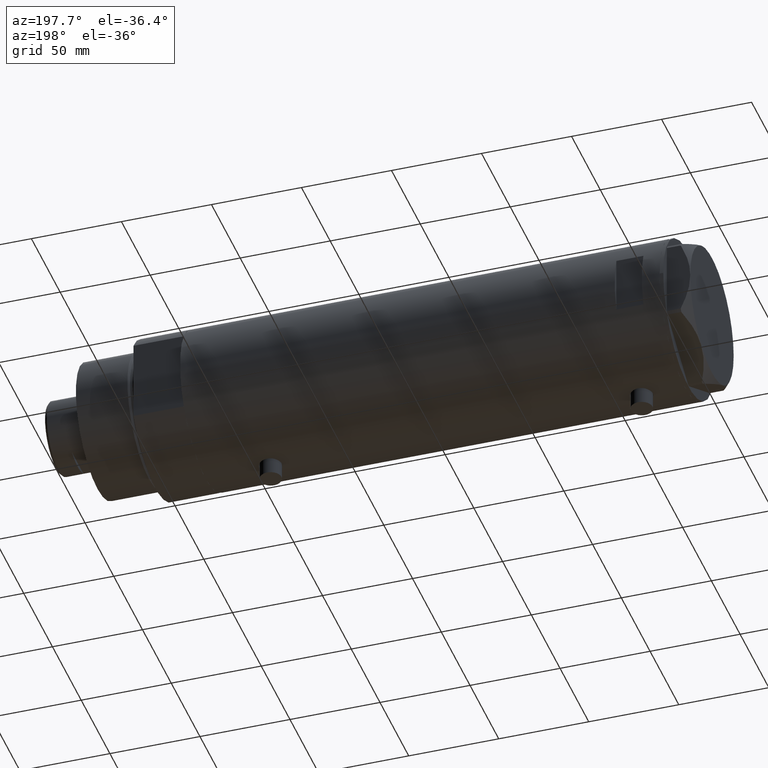
[diagram: clean part render]
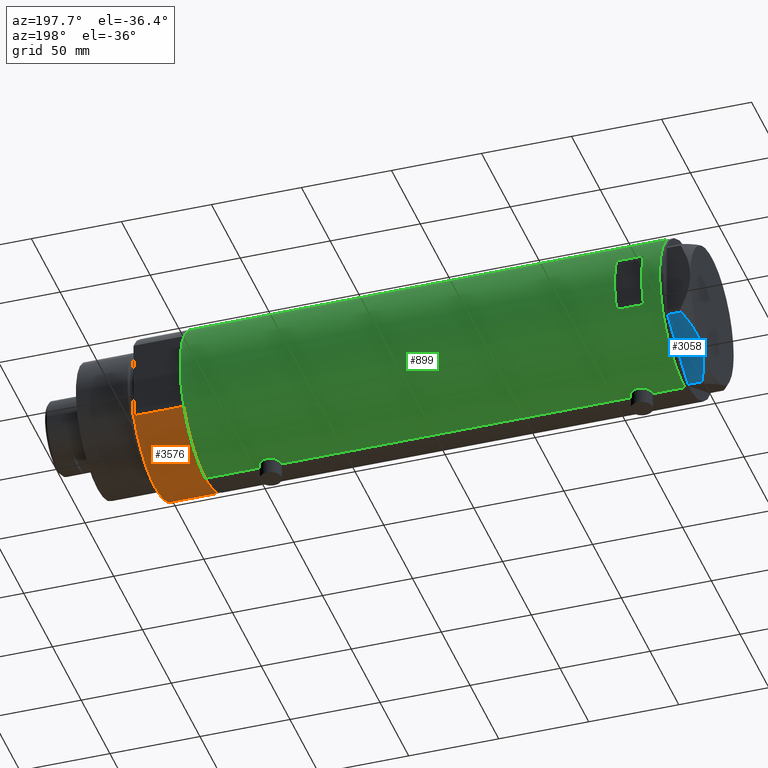
[diagram: same view with three faces highlighted in distinct colors, each labeled with its STEP entity id]
A machine part, auxiliary view with three faces highlighted in distinct colors.
Their STEP definitions:

[orange] entity #3576 — the highlighted cylindrical surface (partial cylindrical patch) has radius 44 mm, axis along (-1, -0, 0).
#256 = EDGE_CURVE ( 'NONE', #3690, #3277, #1221, .T. ) ;
#352 = LINE ( 'NONE', #435, #1498 ) ;
#435 = CARTESIAN_POINT ( 'NONE',  ( 23.01629857296780557, -37.50000000000000000, 0.000000000000000000 ) ) ;
#503 = AXIS2_PLACEMENT_3D ( 'NONE', #1279, #3387, #2715 ) ;
#665 = ORIENTED_EDGE ( 'NONE', *, *, #1046, .F. ) ;
#836 = ORIENTED_EDGE ( 'NONE', *, *, #1237, .F. ) ;
#1046 = EDGE_CURVE ( 'NONE', #1238, #2832, #1951, .T. ) ;
#1083 = CARTESIAN_POINT ( 'NONE',  ( 23.01629857296780557, -37.50000000000000000, 27.89999999999999858 ) ) ;
#1085 = ORIENTED_EDGE ( 'NONE', *, *, #1405, .T. ) ;
#1138 = CARTESIAN_POINT ( 'NONE',  ( 23.01629857296780557, 37.50000000000000000, 0.000000000000000000 ) ) ;
#1221 = CIRCLE ( 'NONE', #4551, 44.00000000000000000 ) ;
#1237 = EDGE_CURVE ( 'NONE', #3690, #1238, #352, .T. ) ;
#1238 = VERTEX_POINT ( 'NONE', #1083 ) ;
#1278 = DIRECTION ( 'NONE',  ( 1.000000000000000000, 0.000000000000000000, 0.000000000000000000 ) ) ;
#1279 = CARTESIAN_POINT ( 'NONE',  ( 0.000000000000000000, 0.000000000000000000, 27.89999999999999858 ) ) ;
#1301 = DIRECTION ( 'NONE',  ( 0.000000000000000000, 0.000000000000000000, 1.000000000000000000 ) ) ;
#1405 = EDGE_CURVE ( 'NONE', #3277, #2832, #4302, .T. ) ;
#1425 = DIRECTION ( 'NONE',  ( -0.000000000000000000, -0.000000000000000000, 1.000000000000000000 ) ) ;
#1498 = VECTOR ( 'NONE', #1425, 1000.000000000000000 ) ;
#1951 = CIRCLE ( 'NONE', #3224, 44.00000000000000000 ) ;
#2207 = DIRECTION ( 'NONE',  ( -0.000000000000000000, -0.000000000000000000, 1.000000000000000000 ) ) ;
#2217 = CARTESIAN_POINT ( 'NONE',  ( 0.000000000000000000, 0.000000000000000000, 27.89999999999999858 ) ) ;
#2304 = FACE_OUTER_BOUND ( 'NONE', #2309, .T. ) ;
#2309 = EDGE_LOOP ( 'NONE', ( #665, #836, #2467, #1085 ) ) ;
#2433 = CARTESIAN_POINT ( 'NONE',  ( 23.01629857296780557, 37.50000000000000000, 27.89999999999999858 ) ) ;
#2467 = ORIENTED_EDGE ( 'NONE', *, *, #256, .T. ) ;
#2715 = DIRECTION ( 'NONE',  ( -1.000000000000000000, 0.000000000000000000, 0.000000000000000000 ) ) ;
#2832 = VERTEX_POINT ( 'NONE', #2433 ) ;
#3224 = AXIS2_PLACEMENT_3D ( 'NONE', #2217, #4340, #3625 ) ;
#3277 = VERTEX_POINT ( 'NONE', #3287 ) ;
#3287 = CARTESIAN_POINT ( 'NONE',  ( 23.01629857296780557, 37.50000000000000000, 0.000000000000000000 ) ) ;
#3387 = DIRECTION ( 'NONE',  ( -0.000000000000000000, -0.000000000000000000, -1.000000000000000000 ) ) ;
#3513 = VECTOR ( 'NONE', #2207, 1000.000000000000000 ) ;
#3576 = ADVANCED_FACE ( 'NONE', ( #2304 ), #4445, .T. ) ;
#3625 = DIRECTION ( 'NONE',  ( 1.000000000000000000, 0.000000000000000000, 0.000000000000000000 ) ) ;
#3690 = VERTEX_POINT ( 'NONE', #4081 ) ;
#4081 = CARTESIAN_POINT ( 'NONE',  ( 23.01629857296780557, -37.50000000000000000, 0.000000000000000000 ) ) ;
#4302 = LINE ( 'NONE', #1138, #3513 ) ;
#4340 = DIRECTION ( 'NONE',  ( 0.000000000000000000, 0.000000000000000000, 1.000000000000000000 ) ) ;
#4444 = CARTESIAN_POINT ( 'NONE',  ( 0.000000000000000000, 0.000000000000000000, 0.000000000000000000 ) ) ;
#4445 = CYLINDRICAL_SURFACE ( 'NONE', #503, 44.00000000000000000 ) ;
#4551 = AXIS2_PLACEMENT_3D ( 'NONE', #4444, #1301, #1278 ) ;

[blue] entity #3058 — the highlighted planar face has unit normal (0, -0.5, 0.866).
#163 = CARTESIAN_POINT ( 'NONE',  ( 18.87500000000000000, 32.69245899286255508, 13.00000000000000000 ) ) ;
#266 = CARTESIAN_POINT ( 'NONE',  ( 17.32290914057161046, 33.58855906836029703, 12.99999999999999822 ) ) ;
#327 = VERTEX_POINT ( 'NONE', #4278 ) ;
#464 = LINE ( 'NONE', #513, #4334 ) ;
#513 = CARTESIAN_POINT ( 'NONE',  ( 37.75000000000000000, 21.79497266190837124, 0.000000000000000000 ) ) ;
#582 = VERTEX_POINT ( 'NONE', #3721 ) ;
#614 = CARTESIAN_POINT ( 'NONE',  ( 15.78316139395979611, 34.47753284435075471, 12.87183830165163556 ) ) ;
#625 = CARTESIAN_POINT ( 'NONE',  ( 19.65653997226999294, 32.24123667949002936, 13.00000000000000355 ) ) ;
#667 = CARTESIAN_POINT ( 'NONE',  ( 36.78005154776156616, 22.35497266190829180, 7.709124142616896158 ) ) ;
#685 = VERTEX_POINT ( 'NONE', #667 ) ;
#929 = DIRECTION ( 'NONE',  ( 0.8660254037844385966, -0.4999999999999999445, 0.000000000000000000 ) ) ;
#969 = CARTESIAN_POINT ( 'NONE',  ( 25.11263918036255305, 29.09115633297248849, 12.35956205105863859 ) ) ;
#996 = CARTESIAN_POINT ( 'NONE',  ( 20.44120046918717293, 31.78821273037242534, 12.96759879420492290 ) ) ;
#1032 = CARTESIAN_POINT ( 'NONE',  ( 36.78005154776142405, 22.35497266190837706, 0.000000000000000000 ) ) ;
#1300 = CARTESIAN_POINT ( 'NONE',  ( 18.87500000000000000, 32.69245899286255508, 13.00000000000000000 ) ) ;
#1329 = CARTESIAN_POINT ( 'NONE',  ( 8.199247025945881617, 38.85610784623463587, 11.04644118613097170 ) ) ;
#1336 = EDGE_LOOP ( 'NONE', ( #1674, #2821, #2046, #2373, #1871 ) ) ;
#1386 = CARTESIAN_POINT ( 'NONE',  ( 22.01686507582220642, 30.87850234557911833, 12.83692902789790224 ) ) ;
#1663 = CARTESIAN_POINT ( 'NONE',  ( 0.9699484522410141141, 43.02994532381532622, 7.709124142618329678 ) ) ;
#1674 = ORIENTED_EDGE ( 'NONE', *, *, #2766, .F. ) ;
#1676 = AXIS2_PLACEMENT_3D ( 'NONE', #4078, #2388, #929 ) ;
#1707 = CARTESIAN_POINT ( 'NONE',  ( 36.78005154776156616, 22.35497266190829180, 7.709124142616896158 ) ) ;
#1756 = DIRECTION ( 'NONE',  ( 0.000000000000000000, 0.000000000000000000, -1.000000000000000000 ) ) ;
#1766 = EDGE_CURVE ( 'NONE', #4064, #327, #2725, .T. ) ;
#1871 = ORIENTED_EDGE ( 'NONE', *, *, #1766, .F. ) ;
#2046 = ORIENTED_EDGE ( 'NONE', *, *, #3965, .T. ) ;
#2067 = CARTESIAN_POINT ( 'NONE',  ( 0.9699484522385712904, 43.02994532381674020, 13.00000000000000000 ) ) ;
#2198 = LINE ( 'NONE', #3612, #3887 ) ;
#2373 = ORIENTED_EDGE ( 'NONE', *, *, #3844, .T. ) ;
#2388 = DIRECTION ( 'NONE',  ( -0.5000000000000000000, -0.8660254037844387076, 0.000000000000000000 ) ) ;
#2583 = EDGE_CURVE ( 'NONE', #685, #3831, #2198, .T. ) ;
#2634 = CARTESIAN_POINT ( 'NONE',  ( 6.717640657182761821, 39.71151368207312515, 10.48240969891332064 ) ) ;
#2725 = B_SPLINE_CURVE_WITH_KNOTS ( 'NONE', 3,
 ( #1300, #266, #614, #3731, #3384, #4443, #1329, #2634, #4102, #3358, #3046, #1663 ),
 .UNSPECIFIED., .F., .F.,
 ( 4, 2, 2, 2, 2, 4 ),
 ( 0.02259271946349905927, 0.02789559809390696268, 0.03319847672431486263, 0.03584991603951881434, 0.03850135535472275911, 0.04380423398513066252 ),
 .UNSPECIFIED. ) ;
#2766 = EDGE_CURVE ( 'NONE', #685, #4064, #3917, .T. ) ;
#2821 = ORIENTED_EDGE ( 'NONE', *, *, #2583, .T. ) ;
#3046 = CARTESIAN_POINT ( 'NONE',  ( 2.376799045725944914, 42.21769975495722349, 8.489459328479338041 ) ) ;
#3058 = ADVANCED_FACE ( 'NONE', ( #4516 ), #4152, .F. ) ;
#3157 = CARTESIAN_POINT ( 'NONE',  ( 22.79667224021352112, 30.42828046930179298, 12.73960743196720458 ) ) ;
#3358 = CARTESIAN_POINT ( 'NONE',  ( 3.804046002726260589, 41.39367834013302883, 9.210778219601426287 ) ) ;
#3384 = CARTESIAN_POINT ( 'NONE',  ( 11.20965750620489843, 37.11804654508583212, 12.01242981158388723 ) ) ;
#3478 = DIRECTION ( 'NONE',  ( 0.000000000000000000, 0.000000000000000000, 1.000000000000000000 ) ) ;
#3542 = CARTESIAN_POINT ( 'NONE',  ( 31.09047021924040877, 25.63985397350625206, 10.58681170757598800 ) ) ;
#3597 = VECTOR ( 'NONE', #3478, 1000.000000000000000 ) ;
#3612 = CARTESIAN_POINT ( 'NONE',  ( 36.78005154776142405, 22.35497266190837706, 13.00000000000000000 ) ) ;
#3630 = DIRECTION ( 'NONE',  ( -0.8660254037844385966, 0.5000000000000000000, 0.000000000000000000 ) ) ;
#3721 = CARTESIAN_POINT ( 'NONE',  ( 0.9699484522385850571, 43.02994532381674020, 0.000000000000000000 ) ) ;
#3731 = CARTESIAN_POINT ( 'NONE',  ( 12.72654504259190666, 36.24227111762240128, 12.37795492145974308 ) ) ;
#3831 = VERTEX_POINT ( 'NONE', #1032 ) ;
#3844 = EDGE_CURVE ( 'NONE', #582, #327, #4539, .T. ) ;
#3887 = VECTOR ( 'NONE', #1756, 1000.000000000000000 ) ;
#3917 = B_SPLINE_CURVE_WITH_KNOTS ( 'NONE', 3,
 ( #1707, #4216, #3542, #4146, #969, #3157, #1386, #996, #625, #4509 ),
 .UNSPECIFIED., .F., .F.,
 ( 4, 2, 2, 2, 4 ),
 ( 0.001231023567492484571, 0.01191187151549577897, 0.01725229548949741912, 0.01992250747649823919, 0.02259271946349905927 ),
 .UNSPECIFIED. ) ;
#3965 = EDGE_CURVE ( 'NONE', #3831, #582, #464, .T. ) ;
#4064 = VERTEX_POINT ( 'NONE', #163 ) ;
#4078 = CARTESIAN_POINT ( 'NONE',  ( 37.75000000000000000, 21.79497266190837124, 13.00000000000000000 ) ) ;
#4102 = CARTESIAN_POINT ( 'NONE',  ( 5.984301592052704066, 40.13490718873321583, 10.17879673963510001 ) ) ;
#4146 = CARTESIAN_POINT ( 'NONE',  ( 26.62598697109948631, 28.21742457861299158, 11.98878493998158490 ) ) ;
#4152 = PLANE ( 'NONE',  #1676 ) ;
#4216 = CARTESIAN_POINT ( 'NONE',  ( 33.96695484073207894, 23.97911480296822262, 9.269459228581801824 ) ) ;
#4278 = CARTESIAN_POINT ( 'NONE',  ( 0.9699484522410141141, 43.02994532381532622, 7.709124142618329678 ) ) ;
#4334 = VECTOR ( 'NONE', #3630, 1000.000000000000227 ) ;
#4443 = CARTESIAN_POINT ( 'NONE',  ( 8.949419886524690781, 38.42299534324072141, 11.30742055474510366 ) ) ;
#4509 = CARTESIAN_POINT ( 'NONE',  ( 18.87500000000000000, 32.69245899286255508, 13.00000000000000000 ) ) ;
#4516 = FACE_OUTER_BOUND ( 'NONE', #1336, .T. ) ;
#4539 = LINE ( 'NONE', #2067, #3597 ) ;

[green] entity #899 — the highlighted cylindrical surface (partial cylindrical patch) has radius 44 mm, axis along (-1, -0, 0).
#10 = CYLINDRICAL_SURFACE ( 'NONE', #50, 44.00000000000000000 ) ;
#50 = AXIS2_PLACEMENT_3D ( 'NONE', #2191, #1354, #3605 ) ;
#52 = VERTEX_POINT ( 'NONE', #4429 ) ;
#67 = CARTESIAN_POINT ( 'NONE',  ( -43.88883895882799635, 3.130924084324101297, -102.3131245574814443 ) ) ;
#69 = ORIENTED_EDGE ( 'NONE', *, *, #414, .F. ) ;
#89 = CARTESIAN_POINT ( 'NONE',  ( -44.00000000000000711, 0.4135148353567996149, -90.64999999999996305 ) ) ;
#106 = CARTESIAN_POINT ( 'NONE',  ( -43.99413512814552263, 0.8228129877960659311, -103.1090831432581894 ) ) ;
#120 = CARTESIAN_POINT ( 'NONE',  ( 43.35294442506074830, 7.532526048221050097, -77.70935414491110294 ) ) ;
#134 = EDGE_CURVE ( 'NONE', #1848, #52, #4325, .T. ) ;
#144 = CARTESIAN_POINT ( 'NONE',  ( 42.84850876528982866, 10.00026482975808051, -70.44941694529578058 ) ) ;
#152 = DIRECTION ( 'NONE',  ( 1.000000000000000000, 0.000000000000000000, 0.000000000000000000 ) ) ;
#166 = CARTESIAN_POINT ( 'NONE',  ( 43.17306590853068116, 8.492365194390515626, -65.80987467306543692 ) ) ;
#183 = CARTESIAN_POINT ( 'NONE',  ( 43.88561577393361546, 3.228056721358708359, 120.3872166572782163 ) ) ;
#198 = CARTESIAN_POINT ( 'NONE',  ( -43.95549163632549750, 2.014511215452027937, 103.2694104429502033 ) ) ;
#222 = CARTESIAN_POINT ( 'NONE',  ( 44.00000000000000000, 0.000000000000000000, -133.1999999999999886 ) ) ;
#225 = EDGE_CURVE ( 'NONE', #849, #1192, #3586, .T. ) ;
#234 = CARTESIAN_POINT ( 'NONE',  ( 43.46520118248735542, 6.843279251446916511, 103.6010167278783172 ) ) ;
#246 = CARTESIAN_POINT ( 'NONE',  ( -43.80646232387288563, 4.132500855894024383, 113.9064558540335526 ) ) ;
#259 = CARTESIAN_POINT ( 'NONE',  ( 43.27822890220284791, 7.945655169171516263, 104.7927461671070688 ) ) ;
#350 = ORIENTED_EDGE ( 'NONE', *, *, #2137, .T. ) ;
#385 = DIRECTION ( 'NONE',  ( -0.000000000000000000, -0.000000000000000000, 1.000000000000000000 ) ) ;
#405 = CARTESIAN_POINT ( 'NONE',  ( 43.92466059386730137, 2.593004216484783964, -80.76356669671353927 ) ) ;
#414 = EDGE_CURVE ( 'NONE', #52, #2241, #2964, .T. ) ;
#416 = LINE ( 'NONE', #4290, #875 ) ;
#427 = CARTESIAN_POINT ( 'NONE',  ( -44.00000000000000000, 4.742435893011557518E-16, 115.4500000000000028 ) ) ;
#443 = CARTESIAN_POINT ( 'NONE',  ( 43.94229162222111285, 2.275476993733910547, 101.1568553577768768 ) ) ;
#446 = EDGE_CURVE ( 'NONE', #2241, #1447, #1776, .T. ) ;
#458 = CARTESIAN_POINT ( 'NONE',  ( -43.80687348212602217, 4.128385987736833407, -101.6104874331096113 ) ) ;
#468 = CARTESIAN_POINT ( 'NONE',  ( 44.00000000000000000, -3.917155089190972685E-21, -61.10000000000000142 ) ) ;
#475 = ORIENTED_EDGE ( 'NONE', *, *, #446, .F. ) ;
#478 = CARTESIAN_POINT ( 'NONE',  ( -43.67867890111967455, 5.309046579850785541, -100.2042277907602141 ) ) ;
#480 = CARTESIAN_POINT ( 'NONE',  ( -15.96871942267132027, 40.99999999999999289, -133.1999999999999886 ) ) ;
#491 = CARTESIAN_POINT ( 'NONE',  ( 43.77712723341632284, 4.432620652875510103, -62.13004990240030878 ) ) ;
#528 = CARTESIAN_POINT ( 'NONE',  ( -43.55386785759471024, 6.249847571481740971, -96.48945052382043741 ) ) ;
#536 = CARTESIAN_POINT ( 'NONE',  ( 43.98169492814103165, 1.310824514239766536, 120.8191978038068299 ) ) ;
#544 = CARTESIAN_POINT ( 'NONE',  ( -43.97068415157983878, 1.617901284326946909, 115.2404512830004251 ) ) ;
#572 = CARTESIAN_POINT ( 'NONE',  ( -43.66555354895124452, 5.415612800338318600, 112.3265635717755799 ) ) ;
#575 = B_SPLINE_CURVE_WITH_KNOTS ( 'NONE', 3,
 ( #2492, #89, #2456, #2145, #4232, #2859, #3858, #3574, #687, #2094, #3178, #1061, #712, #2124, #3544, #3006, #2292, #2650, #3372, #1550, #4360, #528, #1194, #1504, #3990, #4308, #2927, #1145, #4013, #478, #3301, #3966, #458, #2593, #3439, #67, #4209, #2451, #3666, #2920, #106, #1168, #2570 ),
 .UNSPECIFIED., .F., .F.,
 ( 4, 2, 2, 2, 2, 2, 2, 2, 1, 2, 2, 2, 2, 2, 2, 2, 2, 2, 2, 2, 2, 4 ),
 ( 4.607873388256435088E-19, 0.001222818171749670340, 0.001834227257624505619, 0.002445636343499341114, 0.003668454515249027284, 0.004891272686998713454, 0.006114090858748398756, 0.006725499944623259188, 0.007336909030498119620, 0.007948318116372978318, 0.008559727202247837882, 0.009782545373997518848, 0.01100536354574719981, 0.01222818171749687904, 0.01283959080337173861, 0.01345099988924659644, 0.01467381806099631383, 0.01589663623274603296, 0.01650804531862088906, 0.01711945440449574862, 0.01834227257624546428, 0.01956509074799517994 ),
 .UNSPECIFIED. ) ;
#587 = CARTESIAN_POINT ( 'NONE',  ( 42.84863276153905787, 9.999733523508361088, 110.2413009524922103 ) ) ;
#600 = CARTESIAN_POINT ( 'NONE',  ( -43.83593455218809254, 3.811409182021277431, 114.1701492770349944 ) ) ;
#627 = VERTEX_POINT ( 'NONE', #3212 ) ;
#637 = CARTESIAN_POINT ( 'NONE',  ( -43.94507179847653333, 2.206027755801677870, 115.0513152228179052 ) ) ;
#687 = CARTESIAN_POINT ( 'NONE',  ( -43.88968326835893663, 3.132363423941621150, -91.47620767643519457 ) ) ;
#712 = CARTESIAN_POINT ( 'NONE',  ( -43.71938389712227746, 4.966728892888062852, -93.08385547659128179 ) ) ;
#726 = EDGE_CURVE ( 'NONE', #1422, #3624, #2874, .T. ) ;
#750 = VERTEX_POINT ( 'NONE', #427 ) ;
#762 = DIRECTION ( 'NONE',  ( -1.000000000000000000, -8.881784197001252323E-16, 0.000000000000000000 ) ) ;
#813 = CARTESIAN_POINT ( 'NONE',  ( 43.13962074468734187, 8.660138848900679420, -66.08910258836066021 ) ) ;
#817 = CARTESIAN_POINT ( 'NONE',  ( -44.00000000000000000, 4.742435893011557518E-16, -90.64999999999997726 ) ) ;
#833 = CARTESIAN_POINT ( 'NONE',  ( 43.50382207688846137, 6.605942769308308371, -63.56395311161777784 ) ) ;
#834 = EDGE_CURVE ( 'NONE', #750, #3141, #3231, .T. ) ;
#849 = VERTEX_POINT ( 'NONE', #1483 ) ;
#857 = CARTESIAN_POINT ( 'NONE',  ( 43.98503110884232115, 1.314607393679875669, 100.9652901565444836 ) ) ;
#872 = DIRECTION ( 'NONE',  ( 0.000000000000000000, 0.000000000000000000, 1.000000000000000000 ) ) ;
#875 = VECTOR ( 'NONE', #2902, 1000.000000000000000 ) ;
#889 = CARTESIAN_POINT ( 'NONE',  ( -43.55386785759471024, 6.249847571481740971, 109.6105494761795285 ) ) ;
#899 = ADVANCED_FACE ( 'NONE', ( #1126, #2069 ), #10, .T. ) ;
#904 = CARTESIAN_POINT ( 'NONE',  ( 43.04663170950395568, 9.110642017076083121, 106.7645249780960484 ) ) ;
#909 = CARTESIAN_POINT ( 'NONE',  ( 0.000000000000000000, 0.000000000000000000, 133.1999999999999886 ) ) ;
#913 = CARTESIAN_POINT ( 'NONE',  ( -44.00000000000000711, 0.4135148353567996149, 115.4500000000000028 ) ) ;
#917 = CARTESIAN_POINT ( 'NONE',  ( 0.000000000000000000, 0.000000000000000000, -133.1999999999999886 ) ) ;
#925 = CARTESIAN_POINT ( 'NONE',  ( 43.27871541412905287, 7.937063204555986573, 116.9917499724602976 ) ) ;
#939 = CARTESIAN_POINT ( 'NONE',  ( -43.57657963456318839, 6.089610171536606664, 110.6217853958080894 ) ) ;
#949 = CARTESIAN_POINT ( 'NONE',  ( 43.13962074468734897, 8.660138848900670538, 115.9108974116393256 ) ) ;
#964 = CARTESIAN_POINT ( 'NONE',  ( -43.64122538274737195, 5.608286354294323317, 111.9661138696334035 ) ) ;
#1007 = CARTESIAN_POINT ( 'NONE',  ( -43.99999999999997158, 0.4081702738789203533, 102.9499999999999460 ) ) ;
#1037 = CARTESIAN_POINT ( 'NONE',  ( 43.57657781376909156, 6.094873943596678778, -79.03474301119597101 ) ) ;
#1061 = CARTESIAN_POINT ( 'NONE',  ( -43.74833112883977293, 4.708208586952001617, -92.76949616491124573 ) ) ;
#1072 = VECTOR ( 'NONE', #4386, 1000.000000000000000 ) ;
#1126 = FACE_BOUND ( 'NONE', #1214, .T. ) ;
#1145 = CARTESIAN_POINT ( 'NONE',  ( -43.64133398152736021, 5.607447751852152606, -99.66786045012435125 ) ) ;
#1162 = CARTESIAN_POINT ( 'NONE',  ( 43.27822890220284791, 7.945655169171514487, -77.20725383289291699 ) ) ;
#1168 = CARTESIAN_POINT ( 'NONE',  ( -43.99999999999997158, 0.4081702738789203533, -103.1499999999999488 ) ) ;
#1192 = VERTEX_POINT ( 'NONE', #3202 ) ;
#1194 = CARTESIAN_POINT ( 'NONE',  ( -43.55382423478827292, 6.250151562062086441, -97.30589529487338041 ) ) ;
#1206 = CARTESIAN_POINT ( 'NONE',  ( 43.57805684119164624, 6.103282219787164564, -63.15183798352140343 ) ) ;
#1214 = EDGE_LOOP ( 'NONE', ( #4097, #1548, #2410, #2125 ) ) ;
#1223 = CARTESIAN_POINT ( 'NONE',  ( 43.07641822757289418, 8.969229373860565957, 115.3339623579017257 ) ) ;
#1228 = CARTESIAN_POINT ( 'NONE',  ( 43.07641822757290129, 8.969229373860576615, -66.66603764209827432 ) ) ;
#1234 = CARTESIAN_POINT ( 'NONE',  ( -43.80687348212602217, 4.128385987736833407, 104.4895125668903404 ) ) ;
#1267 = ORIENTED_EDGE ( 'NONE', *, *, #3172, .T. ) ;
#1273 = CARTESIAN_POINT ( 'NONE',  ( 43.17277162440354488, 8.493905080221262338, 105.6121296489150438 ) ) ;
#1286 = DIRECTION ( 'NONE',  ( 0.000000000000000000, 0.000000000000000000, 1.000000000000000000 ) ) ;
#1292 = EDGE_CURVE ( 'NONE', #2310, #2300, #575, .T. ) ;
#1294 = CARTESIAN_POINT ( 'NONE',  ( 43.13897484505560698, 8.663345277311673698, 105.8947039993948920 ) ) ;
#1309 = CARTESIAN_POINT ( 'NONE',  ( -43.95446647384543581, 2.010857111636599637, 115.1212422636393597 ) ) ;
#1330 = CARTESIAN_POINT ( 'NONE',  ( 15.96871942267132027, 40.99999999999999289, 108.1999999999999744 ) ) ;
#1333 = CARTESIAN_POINT ( 'NONE',  ( -43.83576802966640429, 3.813209221108459168, 104.2313450964528840 ) ) ;
#1354 = DIRECTION ( 'NONE',  ( 0.000000000000000000, 0.000000000000000000, 1.000000000000000000 ) ) ;
#1400 = CARTESIAN_POINT ( 'NONE',  ( 44.00000000000000000, -3.135075661981687665E-15, -81.09999999999999432 ) ) ;
#1422 = VERTEX_POINT ( 'NONE', #3787 ) ;
#1447 = VERTEX_POINT ( 'NONE', #3764 ) ;
#1450 = VECTOR ( 'NONE', #2958, 1000.000000000000000 ) ;
#1459 = CARTESIAN_POINT ( 'NONE',  ( 43.71659050864932539, 5.015880325000608764, -79.77566825963823760 ) ) ;
#1483 = CARTESIAN_POINT ( 'NONE',  ( 44.00000000000000000, 0.000000000000000000, 133.1999999999999886 ) ) ;
#1488 = CARTESIAN_POINT ( 'NONE',  ( 43.97062489912107708, 1.639461988184798935, -61.22985373334012849 ) ) ;
#1504 = CARTESIAN_POINT ( 'NONE',  ( -43.55973179376100290, 6.209370339246232717, -97.72061767059869908 ) ) ;
#1514 = AXIS2_PLACEMENT_3D ( 'NONE', #4362, #2621, #1906 ) ;
#1532 = LINE ( 'NONE', #480, #1450 ) ;
#1542 = CARTESIAN_POINT ( 'NONE',  ( 43.24261242176995523, 8.130827601038829400, -65.26944813145829016 ) ) ;
#1548 = ORIENTED_EDGE ( 'NONE', *, *, #726, .F. ) ;
#1550 = CARTESIAN_POINT ( 'NONE',  ( -43.57657963456318839, 6.089610171536606664, -95.47821460419186224 ) ) ;
#1565 = CARTESIAN_POINT ( 'NONE',  ( 43.07598348983507464, 8.971306953823004804, -75.52969423187190046 ) ) ;
#1569 = CARTESIAN_POINT ( 'NONE',  ( -43.71938389712227746, 4.966728892888062852, 113.0161445234086841 ) ) ;
#1582 = CARTESIAN_POINT ( 'NONE',  ( 42.84850876528983576, 10.00026482975808229, 111.5505830547042621 ) ) ;
#1585 = CARTESIAN_POINT ( 'NONE',  ( 44.00000000000000000, 0.000000000000000000, -133.1999999999999886 ) ) ;
#1600 = CARTESIAN_POINT ( 'NONE',  ( -43.97181775256600389, 1.624866278047415680, 103.1510708161490300 ) ) ;
#1607 = DIRECTION ( 'NONE',  ( 0.000000000000000000, 0.000000000000000000, 1.000000000000000000 ) ) ;
#1616 = CARTESIAN_POINT ( 'NONE',  ( 43.35294442506074120, 7.532526048221051873, 104.2906458550888971 ) ) ;
#1626 = CARTESIAN_POINT ( 'NONE',  ( -43.71901936021023971, 4.969830049220626655, 105.3883236230112317 ) ) ;
#1647 = CARTESIAN_POINT ( 'NONE',  ( -43.59995593514495482, 5.920088975424566691, 111.2141790869178237 ) ) ;
#1659 = CARTESIAN_POINT ( 'NONE',  ( 43.04652664061922707, 9.111152824375430725, 115.0345800921458874 ) ) ;
#1668 = ORIENTED_EDGE ( 'NONE', *, *, #4305, .T. ) ;
#1671 = CARTESIAN_POINT ( 'NONE',  ( -43.58221825186232223, 6.049526113783018744, 107.5773702918203583 ) ) ;
#1688 = CARTESIAN_POINT ( 'NONE',  ( 43.61291203895921598, 5.829986172017926016, 102.7687128921316884 ) ) ;
#1744 = VECTOR ( 'NONE', #1286, 1000.000000000000000 ) ;
#1776 = B_SPLINE_CURVE_WITH_KNOTS ( 'NONE', 3,
 ( #2169, #3582, #857, #443, #2269, #3681, #3424, #3042, #2029, #1688, #3066, #4439, #234, #1616, #259, #1273, #1294, #1956, #904, #4074, #2655, #2680, #2707, #3752, #587, #1582, #4098, #4049, #2299, #1659, #1223, #949, #2318, #1986, #925, #3404, #2364, #3094, #2385, #3015, #4488, #4150, #3449, #183, #2628, #3708, #536, #1933, #3353, #4414 ),
 .UNSPECIFIED., .F., .F.,
 ( 4, 2, 2, 2, 2, 2, 2, 2, 2, 2, 2, 2, 2, 2, 2, 2, 2, 2, 2, 2, 2, 2, 2, 2, 4 ),
 ( 2.479523669370822448E-18, 0.001960456513248879339, 0.002940684769873313370, 0.003920913026497747401, 0.005881369539746631077, 0.006861597796371071180, 0.007841826052995510415, 0.009802282566244392356, 0.01078251082286883072, 0.01176273907949326909, 0.01274296733611770746, 0.01372319559274214583, 0.01568365210599106593, 0.01764410861923998430, 0.01960456513248890267, 0.02058479338911334278, 0.02156502164573777941, 0.02254524990236221951, 0.02352547815898665615, 0.02548593467223552941, 0.02646616292885996952, 0.02744639118548440615, 0.02940684769873327942, 0.03038707595535771258, 0.03136730421198213881 ),
 .UNSPECIFIED. ) ;
#1793 = CARTESIAN_POINT ( 'NONE',  ( 43.85884410404901246, 3.534688330930384925, -80.46019808750332913 ) ) ;
#1823 = CARTESIAN_POINT ( 'NONE',  ( 43.92756755766649235, 2.604528169608121946, -61.42286588097655908 ) ) ;
#1844 = CARTESIAN_POINT ( 'NONE',  ( 42.84863276153907208, 9.999733523508362865, -71.75869904750778971 ) ) ;
#1848 = VERTEX_POINT ( 'NONE', #4517 ) ;
#1869 = DIRECTION ( 'NONE',  ( -0.000000000000000000, -0.000000000000000000, -1.000000000000000000 ) ) ;
#1906 = DIRECTION ( 'NONE',  ( 1.000000000000000000, -8.881784197001252323E-16, 0.000000000000000000 ) ) ;
#1933 = CARTESIAN_POINT ( 'NONE',  ( 43.99635668041008074, 0.6544833911834539997, 120.8840070847752912 ) ) ;
#1956 = CARTESIAN_POINT ( 'NONE',  ( 43.07598348983507464, 8.971306953823011909, 106.4703057681281280 ) ) ;
#1972 = CARTESIAN_POINT ( 'NONE',  ( -43.55963022497231663, 6.210088036293396563, 110.0164616301742200 ) ) ;
#1986 = CARTESIAN_POINT ( 'NONE',  ( 43.24261242176996234, 8.130827601038829400, 116.7305518685416814 ) ) ;
#2029 = CARTESIAN_POINT ( 'NONE',  ( 43.71659050864931828, 5.015880325000608764, 102.2243317403618050 ) ) ;
#2037 = CIRCLE ( 'NONE', #3520, 44.00000000000000000 ) ;
#2040 = DIRECTION ( 'NONE',  ( 0.000000000000000000, 0.000000000000000000, 1.000000000000000000 ) ) ;
#2042 = CARTESIAN_POINT ( 'NONE',  ( -43.88968326835893663, 3.132363423941621150, 114.6237923235648140 ) ) ;
#2069 = FACE_OUTER_BOUND ( 'NONE', #3343, .T. ) ;
#2073 = CARTESIAN_POINT ( 'NONE',  ( 44.00000000000000000, -2.552687571866728611E-15, 100.8999999999999915 ) ) ;
#2086 = CARTESIAN_POINT ( 'NONE',  ( 43.46520118248735542, 6.843279251446916511, -78.39898327212164020 ) ) ;
#2090 = CARTESIAN_POINT ( 'NONE',  ( -44.00000000000000000, 5.388445781982983516E-15, -103.1499999999999915 ) ) ;
#2094 = CARTESIAN_POINT ( 'NONE',  ( -43.83593455218809254, 3.811409182021277431, -91.92985072296495730 ) ) ;
#2124 = CARTESIAN_POINT ( 'NONE',  ( -43.67863969133946966, 5.309394106110037370, -93.59620703497449767 ) ) ;
#2125 = ORIENTED_EDGE ( 'NONE', *, *, #3349, .F. ) ;
#2137 = EDGE_CURVE ( 'NONE', #627, #3897, #2037, .T. ) ;
#2145 = CARTESIAN_POINT ( 'NONE',  ( -43.97754480947185129, 1.419697478855583617, -90.80996723947920657 ) ) ;
#2169 = CARTESIAN_POINT ( 'NONE',  ( 44.00000000000000000, -2.552687571866728611E-15, 100.8999999999999915 ) ) ;
#2191 = CARTESIAN_POINT ( 'NONE',  ( 0.000000000000000000, 0.000000000000000000, -133.1999999999999886 ) ) ;
#2224 = CARTESIAN_POINT ( 'NONE',  ( 44.00000000000000000, 0.3269372501759409411, -61.10000000000001563 ) ) ;
#2241 = VERTEX_POINT ( 'NONE', #2073 ) ;
#2269 = CARTESIAN_POINT ( 'NONE',  ( 43.92466059386729427, 2.593004216484783964, 101.2364333032864323 ) ) ;
#2292 = CARTESIAN_POINT ( 'NONE',  ( -43.61859254253774054, 5.782454868881351295, -94.50213599105534001 ) ) ;
#2299 = CARTESIAN_POINT ( 'NONE',  ( 42.96547725528407824, 9.488625330801083280, 114.1245034721107316 ) ) ;
#2300 = VERTEX_POINT ( 'NONE', #2090 ) ;
#2310 = VERTEX_POINT ( 'NONE', #817 ) ;
#2318 = CARTESIAN_POINT ( 'NONE',  ( 43.17306590853067405, 8.492365194390513849, 116.1901253269345489 ) ) ;
#2319 = LINE ( 'NONE', #1585, #2434 ) ;
#2351 = CARTESIAN_POINT ( 'NONE',  ( -43.92459115390705193, 2.581892149020998950, 103.5045417292665206 ) ) ;
#2364 = CARTESIAN_POINT ( 'NONE',  ( 43.39051256276903246, 7.301963662770311281, 117.7402446821294149 ) ) ;
#2385 = CARTESIAN_POINT ( 'NONE',  ( 43.57805684119164624, 6.103282219787165452, 118.8481620164785824 ) ) ;
#2386 = CARTESIAN_POINT ( 'NONE',  ( -15.96871942267132027, 40.99999999999999289, 123.1999999999999744 ) ) ;
#2392 = LINE ( 'NONE', #222, #2709 ) ;
#2410 = ORIENTED_EDGE ( 'NONE', *, *, #3357, .F. ) ;
#2434 = VECTOR ( 'NONE', #2657, 1000.000000000000000 ) ;
#2451 = CARTESIAN_POINT ( 'NONE',  ( -43.92459115390705193, 2.581892149020998950, -102.5954582707334168 ) ) ;
#2456 = CARTESIAN_POINT ( 'NONE',  ( -43.99417607942194763, 0.8200150578638748522, -90.69063327483260650 ) ) ;
#2492 = CARTESIAN_POINT ( 'NONE',  ( -44.00000000000000000, 4.742435893011557518E-16, -90.64999999999997726 ) ) ;
#2551 = EDGE_CURVE ( 'NONE', #3624, #2812, #3297, .T. ) ;
#2563 = CARTESIAN_POINT ( 'NONE',  ( 43.04663170950396278, 9.110642017076083121, -75.23547502190392322 ) ) ;
#2570 = CARTESIAN_POINT ( 'NONE',  ( -44.00000000000000000, 5.388445781982983516E-15, -103.1499999999999915 ) ) ;
#2573 = LINE ( 'NONE', #4037, #3016 ) ;
#2584 = CARTESIAN_POINT ( 'NONE',  ( 42.92624534982631701, 9.661626915142807803, -73.70008004144708025 ) ) ;
#2593 = CARTESIAN_POINT ( 'NONE',  ( -43.83576802966640429, 3.813209221108459168, -101.8686549035471103 ) ) ;
#2603 = CARTESIAN_POINT ( 'NONE',  ( 43.98169492814103165, 1.310824514239770533, -61.18080219619314875 ) ) ;
#2607 = ORIENTED_EDGE ( 'NONE', *, *, #225, .F. ) ;
#2621 = DIRECTION ( 'NONE',  ( -0.000000000000000000, -0.000000000000000000, -1.000000000000000000 ) ) ;
#2628 = CARTESIAN_POINT ( 'NONE',  ( 43.92756755766649235, 2.604528169608113064, 120.5771341190234125 ) ) ;
#2635 = CARTESIAN_POINT ( 'NONE',  ( 43.68141895191831736, 5.292250119194735980, -62.60895047714807049 ) ) ;
#2650 = CARTESIAN_POINT ( 'NONE',  ( -43.59995593514495482, 5.920088975424566691, -94.88582091308217059 ) ) ;
#2655 = CARTESIAN_POINT ( 'NONE',  ( 42.96879251999280314, 9.470609476412112926, 107.6727710005894210 ) ) ;
#2657 = DIRECTION ( 'NONE',  ( 0.000000000000000000, 0.000000000000000000, 1.000000000000000000 ) ) ;
#2672 = EDGE_CURVE ( 'NONE', #2310, #3141, #3399, .T. ) ;
#2680 = CARTESIAN_POINT ( 'NONE',  ( 42.92624534982631701, 9.661626915142809580, 108.2999199585528913 ) ) ;
#2707 = CARTESIAN_POINT ( 'NONE',  ( 42.90786968859021044, 9.742642423712171151, 108.6219770345287685 ) ) ;
#2709 = VECTOR ( 'NONE', #2040, 1000.000000000000000 ) ;
#2719 = CARTESIAN_POINT ( 'NONE',  ( -43.59867737633045692, 5.931302618788633296, 107.1875050497011301 ) ) ;
#2747 = CARTESIAN_POINT ( 'NONE',  ( -43.58362292239462477, 6.039157555656595733, 110.8226357844803402 ) ) ;
#2754 = CARTESIAN_POINT ( 'NONE',  ( -15.96871942267132027, 40.99999999999999289, 108.1999999999999744 ) ) ;
#2787 = CARTESIAN_POINT ( 'NONE',  ( 43.77939001959705934, 4.442287752090383179, -80.08306177559163075 ) ) ;
#2812 = VERTEX_POINT ( 'NONE', #2754 ) ;
#2846 = AXIS2_PLACEMENT_3D ( 'NONE', #909, #3408, #3453 ) ;
#2859 = CARTESIAN_POINT ( 'NONE',  ( -43.95446647384543581, 2.010857111636599637, -90.97875773636060615 ) ) ;
#2871 = CARTESIAN_POINT ( 'NONE',  ( 43.88297407487990398, 3.222431612395380007, -80.57228202029341446 ) ) ;
#2874 = LINE ( 'NONE', #3985, #3220 ) ;
#2884 = CARTESIAN_POINT ( 'NONE',  ( -44.00000000000000000, 5.388445781982983516E-15, 102.9499999999999886 ) ) ;
#2885 = CARTESIAN_POINT ( 'NONE',  ( -44.00000000000000000, 5.388445916248353619E-15, -133.1999999999999886 ) ) ;
#2888 = CARTESIAN_POINT ( 'NONE',  ( 43.35257020184193522, 7.523219862841653338, -64.50397445915864125 ) ) ;
#2902 = DIRECTION ( 'NONE',  ( 0.000000000000000000, 0.000000000000000000, 1.000000000000000000 ) ) ;
#2912 = CARTESIAN_POINT ( 'NONE',  ( 43.39051256276902535, 7.301963662770313057, -64.25975531787057093 ) ) ;
#2920 = CARTESIAN_POINT ( 'NONE',  ( -43.97181775256600389, 1.624866278047415680, -102.9489291838509359 ) ) ;
#2923 = EDGE_CURVE ( 'NONE', #1447, #849, #2392, .T. ) ;
#2927 = CARTESIAN_POINT ( 'NONE',  ( -43.62981559643959883, 5.696090409300652802, -99.48051365414524128 ) ) ;
#2935 = ORIENTED_EDGE ( 'NONE', *, *, #4121, .F. ) ;
#2942 = CARTESIAN_POINT ( 'NONE',  ( 43.13897484505559987, 8.663345277311663040, -76.10529600060515065 ) ) ;
#2958 = DIRECTION ( 'NONE',  ( 0.000000000000000000, 0.000000000000000000, 1.000000000000000000 ) ) ;
#2964 = LINE ( 'NONE', #4367, #1072 ) ;
#2970 = CARTESIAN_POINT ( 'NONE',  ( 43.99635668041005943, 0.6544833911834577744, -61.11599291522468747 ) ) ;
#2977 = ORIENTED_EDGE ( 'NONE', *, *, #2672, .T. ) ;
#2995 = CARTESIAN_POINT ( 'NONE',  ( -43.64133398152736021, 5.607447751852152606, 106.4321395498756715 ) ) ;
#3006 = CARTESIAN_POINT ( 'NONE',  ( -43.64122538274737195, 5.608286354294323317, -94.13388613036657659 ) ) ;
#3015 = CARTESIAN_POINT ( 'NONE',  ( 43.68141895191831736, 5.292250119194734204, 119.3910495228519437 ) ) ;
#3016 = VECTOR ( 'NONE', #872, 1000.000000000000000 ) ;
#3042 = CARTESIAN_POINT ( 'NONE',  ( 43.77939001959705223, 4.442287752090382291, 101.9169382244083977 ) ) ;
#3060 = CARTESIAN_POINT ( 'NONE',  ( -44.00000000000000000, 5.388445916248353619E-15, -133.1999999999999886 ) ) ;
#3066 = CARTESIAN_POINT ( 'NONE',  ( 43.57657781376909156, 6.094873943596678778, 102.9652569888040290 ) ) ;
#3078 = CARTESIAN_POINT ( 'NONE',  ( -43.66575107734168171, 5.414026674167576658, 106.0706491196230132 ) ) ;
#3094 = CARTESIAN_POINT ( 'NONE',  ( 43.50382207688846847, 6.605942769308303930, 118.4360468883821937 ) ) ;
#3107 = CARTESIAN_POINT ( 'NONE',  ( -43.62981559643959883, 5.696090409300652802, 106.6194863458547530 ) ) ;
#3135 = ORIENTED_EDGE ( 'NONE', *, *, #1292, .F. ) ;
#3141 = VERTEX_POINT ( 'NONE', #2884 ) ;
#3151 = CARTESIAN_POINT ( 'NONE',  ( 44.00000000000001421, 0.6630566900259822205, -81.10000000000002274 ) ) ;
#3168 = CARTESIAN_POINT ( 'NONE',  ( 43.98503110884232115, 1.314607393679875225, -81.03470984345550221 ) ) ;
#3172 = EDGE_CURVE ( 'NONE', #750, #1192, #2573, .T. ) ;
#3178 = CARTESIAN_POINT ( 'NONE',  ( -43.80646232387288563, 4.132500855894024383, -92.19354414596644176 ) ) ;
#3202 = CARTESIAN_POINT ( 'NONE',  ( -44.00000000000000000, 5.388445916248353619E-15, 133.1999999999999886 ) ) ;
#3212 = CARTESIAN_POINT ( 'NONE',  ( 44.00000000000000000, 0.000000000000000000, -133.1999999999999886 ) ) ;
#3220 = VECTOR ( 'NONE', #1869, 1000.000000000000000 ) ;
#3231 = B_SPLINE_CURVE_WITH_KNOTS ( 'NONE', 3,
 ( #4426, #913, #3802, #4109, #544, #1309, #637, #4085, #2042, #600, #246, #3738, #1569, #3363, #572, #964, #4500, #1647, #2747, #939, #1972, #889, #3785, #3432, #1671, #2719, #3107, #2995, #3078, #3392, #1626, #4400, #1234, #1333, #4062, #3715, #4450, #2351, #198, #1600, #4225, #1007, #4313 ),
 .UNSPECIFIED., .F., .F.,
 ( 4, 2, 2, 2, 2, 2, 2, 2, 1, 2, 2, 2, 2, 2, 2, 2, 2, 2, 2, 2, 2, 4 ),
 ( 4.607873388256435088E-19, 0.001222818171749670340, 0.001834227257624505619, 0.002445636343499341114, 0.003668454515249027284, 0.004891272686998713454, 0.006114090858748398756, 0.006725499944623259188, 0.007336909030498119620, 0.007948318116372978318, 0.008559727202247837882, 0.009782545373997518848, 0.01100536354574719981, 0.01222818171749687904, 0.01283959080337173861, 0.01345099988924659644, 0.01467381806099631383, 0.01589663623274603296, 0.01650804531862088906, 0.01711945440449574862, 0.01834227257624546428, 0.01956509074799517994 ),
 .UNSPECIFIED. ) ;
#3252 = CARTESIAN_POINT ( 'NONE',  ( 42.90786968859021044, 9.742642423712167599, -73.37802296547127412 ) ) ;
#3271 = CARTESIAN_POINT ( 'NONE',  ( 42.92259096922160921, 9.678247830257129536, -68.49994006971208194 ) ) ;
#3297 = CIRCLE ( 'NONE', #4195, 44.00000000000000000 ) ;
#3301 = CARTESIAN_POINT ( 'NONE',  ( -43.71901936021023971, 4.969830049220626655, -100.7116763769886916 ) ) ;
#3314 = CARTESIAN_POINT ( 'NONE',  ( 42.99303682946561622, 9.360292926890506848, -74.63424220207204485 ) ) ;
#3338 = CARTESIAN_POINT ( 'NONE',  ( 42.86396777580259965, 9.934664719553401468, -69.78423800973480695 ) ) ;
#3343 = EDGE_LOOP ( 'NONE', ( #350, #1668, #3135, #2977, #4438, #1267, #2607, #4140, #475, #69, #4529, #2935 ) ) ;
#3349 = EDGE_CURVE ( 'NONE', #2812, #4230, #1532, .T. ) ;
#3353 = CARTESIAN_POINT ( 'NONE',  ( 44.00000000000000711, 0.3269372501759374994, 120.8999999999999488 ) ) ;
#3357 = EDGE_CURVE ( 'NONE', #4230, #1422, #3529, .T. ) ;
#3363 = CARTESIAN_POINT ( 'NONE',  ( -43.67863969133946966, 5.309394106110037370, 112.5037929650254540 ) ) ;
#3372 = CARTESIAN_POINT ( 'NONE',  ( -43.58362292239462477, 6.039157555656595733, -95.27736421551958301 ) ) ;
#3392 = CARTESIAN_POINT ( 'NONE',  ( -43.67867890111967455, 5.309046579850785541, 105.8957722092397518 ) ) ;
#3399 = LINE ( 'NONE', #3060, #1744 ) ;
#3404 = CARTESIAN_POINT ( 'NONE',  ( 43.35257020184194232, 7.523219862841656891, 117.4960255408413161 ) ) ;
#3408 = DIRECTION ( 'NONE',  ( 0.000000000000000000, 0.000000000000000000, 1.000000000000000000 ) ) ;
#3424 = CARTESIAN_POINT ( 'NONE',  ( 43.85884410404901246, 3.534688330930384925, 101.5398019124966567 ) ) ;
#3432 = CARTESIAN_POINT ( 'NONE',  ( -43.55973179376100290, 6.209370339246232717, 108.3793823294012668 ) ) ;
#3439 = CARTESIAN_POINT ( 'NONE',  ( -43.87596296923810968, 3.305851531861728976, -102.2080358587625852 ) ) ;
#3449 = CARTESIAN_POINT ( 'NONE',  ( 43.80640706382536109, 4.134078575915387965, 120.0113282156208925 ) ) ;
#3453 = DIRECTION ( 'NONE',  ( 1.000000000000000000, 0.000000000000000000, 0.000000000000000000 ) ) ;
#3520 = AXIS2_PLACEMENT_3D ( 'NONE', #917, #1607, #152 ) ;
#3529 = CIRCLE ( 'NONE', #1514, 44.00000000000000000 ) ;
#3544 = CARTESIAN_POINT ( 'NONE',  ( -43.66555354895124452, 5.415612800338318600, -93.77343642822444281 ) ) ;
#3574 = CARTESIAN_POINT ( 'NONE',  ( -43.91413175532567692, 2.773555030353453965, -91.28415761633256409 ) ) ;
#3582 = CARTESIAN_POINT ( 'NONE',  ( 44.00000000000002132, 0.6630566900259825536, 100.9000000000000199 ) ) ;
#3586 = CIRCLE ( 'NONE', #2846, 44.00000000000000000 ) ;
#3605 = DIRECTION ( 'NONE',  ( 1.000000000000000000, 0.000000000000000000, 0.000000000000000000 ) ) ;
#3615 = CARTESIAN_POINT ( 'NONE',  ( 43.88561577393362256, 3.228056721358715020, -61.61278334272176949 ) ) ;
#3624 = VERTEX_POINT ( 'NONE', #1330 ) ;
#3633 = CARTESIAN_POINT ( 'NONE',  ( 42.86370458161099606, 9.935807968041567406, -72.40904550429866049 ) ) ;
#3654 = CARTESIAN_POINT ( 'NONE',  ( 43.27871541412905998, 7.937063204555987461, -65.00825002753970239 ) ) ;
#3666 = CARTESIAN_POINT ( 'NONE',  ( -43.95549163632549750, 2.014511215452027937, -102.8305895570497626 ) ) ;
#3681 = CARTESIAN_POINT ( 'NONE',  ( 43.88297407487991109, 3.222431612395379119, 101.4277179797065713 ) ) ;
#3708 = CARTESIAN_POINT ( 'NONE',  ( 43.97062489912108418, 1.639461988184795604, 120.7701462666598360 ) ) ;
#3715 = CARTESIAN_POINT ( 'NONE',  ( -43.88883895882799635, 3.130924084324101297, 103.7868754425185358 ) ) ;
#3738 = CARTESIAN_POINT ( 'NONE',  ( -43.74833112883977293, 4.708208586952001617, 113.3305038350888196 ) ) ;
#3752 = CARTESIAN_POINT ( 'NONE',  ( 42.86370458161099606, 9.935807968041567406, 109.5909544957013395 ) ) ;
#3764 = CARTESIAN_POINT ( 'NONE',  ( 44.00000000000000000, -3.917104602093038540E-21, 120.8999999999999773 ) ) ;
#3785 = CARTESIAN_POINT ( 'NONE',  ( -43.55382423478827292, 6.250151562062086441, 108.7941047051266281 ) ) ;
#3787 = CARTESIAN_POINT ( 'NONE',  ( 15.96871942267132027, 40.99999999999999289, 123.1999999999999744 ) ) ;
#3802 = CARTESIAN_POINT ( 'NONE',  ( -43.99417607942194763, 0.8200150578638748522, 115.4093667251674020 ) ) ;
#3851 = CARTESIAN_POINT ( 'NONE',  ( 43.50265731352002518, 6.601850423195592121, -78.61819167298952493 ) ) ;
#3858 = CARTESIAN_POINT ( 'NONE',  ( -43.94507179847653333, 2.206027755801677870, -91.04868477718203224 ) ) ;
#3897 = VERTEX_POINT ( 'NONE', #2885 ) ;
#3910 = CARTESIAN_POINT ( 'NONE',  ( 43.94229162222111285, 2.275476993733910991, -80.84314464222306640 ) ) ;
#3966 = CARTESIAN_POINT ( 'NONE',  ( -43.74805001749254529, 4.711035428619386956, -101.0277606412579843 ) ) ;
#3980 = CARTESIAN_POINT ( 'NONE',  ( 43.80640706382535399, 4.134078575915395071, -61.98867178437915015 ) ) ;
#3985 = CARTESIAN_POINT ( 'NONE',  ( 15.96871942267132027, 40.99999999999999289, -133.1999999999999886 ) ) ;
#3990 = CARTESIAN_POINT ( 'NONE',  ( -43.58221825186232223, 6.049526113783018744, -98.52262970817956500 ) ) ;
#4004 = CARTESIAN_POINT ( 'NONE',  ( 42.96547725528408535, 9.488625330801083280, -67.87549652788928256 ) ) ;
#4013 = CARTESIAN_POINT ( 'NONE',  ( -43.66575107734168171, 5.414026674167576658, -100.0293508803769669 ) ) ;
#4025 = CARTESIAN_POINT ( 'NONE',  ( 43.17277162440354488, 8.493905080221260562, -76.38787035108494194 ) ) ;
#4037 = CARTESIAN_POINT ( 'NONE',  ( -44.00000000000000000, 5.388445916248353619E-15, -133.1999999999999886 ) ) ;
#4049 = CARTESIAN_POINT ( 'NONE',  ( 42.92259096922160211, 9.678247830257127760, 113.5000599302879607 ) ) ;
#4062 = CARTESIAN_POINT ( 'NONE',  ( -43.87596296923810968, 3.305851531861728976, 103.8919641412373807 ) ) ;
#4074 = CARTESIAN_POINT ( 'NONE',  ( 42.99303682946563043, 9.360292926890506848, 107.3657577979279694 ) ) ;
#4085 = CARTESIAN_POINT ( 'NONE',  ( -43.91413175532567692, 2.773555030353453965, 114.8158423836674302 ) ) ;
#4097 = ORIENTED_EDGE ( 'NONE', *, *, #2551, .F. ) ;
#4098 = CARTESIAN_POINT ( 'NONE',  ( 42.86396777580258544, 9.934664719553397916, 112.2157619902652073 ) ) ;
#4109 = CARTESIAN_POINT ( 'NONE',  ( -43.97754480947185129, 1.419697478855583617, 115.2900327605206883 ) ) ;
#4121 = EDGE_CURVE ( 'NONE', #627, #1848, #2319, .T. ) ;
#4140 = ORIENTED_EDGE ( 'NONE', *, *, #2923, .F. ) ;
#4150 = CARTESIAN_POINT ( 'NONE',  ( 43.77712723341632994, 4.432620652875498557, 119.8699500975997125 ) ) ;
#4195 = AXIS2_PLACEMENT_3D ( 'NONE', #4523, #385, #762 ) ;
#4203 = CARTESIAN_POINT ( 'NONE',  ( 43.61291203895920887, 5.829986172017926016, -79.23128710786828321 ) ) ;
#4209 = CARTESIAN_POINT ( 'NONE',  ( -43.91315028150560096, 2.769134003554746482, -102.5068261937540370 ) ) ;
#4225 = CARTESIAN_POINT ( 'NONE',  ( -43.99413512814552263, 0.8228129877960659311, 102.9909168567417623 ) ) ;
#4230 = VERTEX_POINT ( 'NONE', #2386 ) ;
#4232 = CARTESIAN_POINT ( 'NONE',  ( -43.97068415157983878, 1.617901284326946909, -90.85954871699952662 ) ) ;
#4290 = CARTESIAN_POINT ( 'NONE',  ( -44.00000000000000000, 5.388445916248353619E-15, -133.1999999999999886 ) ) ;
#4295 = CARTESIAN_POINT ( 'NONE',  ( 43.71454618729809738, 5.012329428678969911, -62.44063025941689915 ) ) ;
#4305 = EDGE_CURVE ( 'NONE', #3897, #2300, #416, .T. ) ;
#4308 = CARTESIAN_POINT ( 'NONE',  ( -43.59867737633045692, 5.931302618788633296, -98.91249495029886418 ) ) ;
#4313 = CARTESIAN_POINT ( 'NONE',  ( -44.00000000000000000, 5.388445781982983516E-15, 102.9499999999999886 ) ) ;
#4325 = B_SPLINE_CURVE_WITH_KNOTS ( 'NONE', 3,
 ( #1400, #3151, #3168, #3910, #405, #2871, #1793, #2787, #1459, #4203, #1037, #3851, #2086, #120, #1162, #4025, #2942, #1565, #2563, #3314, #4349, #2584, #3252, #3633, #1844, #144, #3338, #3271, #4004, #4393, #1228, #813, #166, #1542, #3654, #2888, #2912, #833, #1206, #2635, #4295, #491, #3980, #3615, #1823, #1488, #2603, #2970, #2224, #468 ),
 .UNSPECIFIED., .F., .F.,
 ( 4, 2, 2, 2, 2, 2, 2, 2, 2, 2, 2, 2, 2, 2, 2, 2, 2, 2, 2, 2, 2, 2, 2, 2, 4 ),
 ( 3.045219632368639583E-18, 0.001960456513248893216, 0.002940684769873342860, 0.003920913026497792504, 0.005881369539746674445, 0.006861597796371113681, 0.007841826052995553784, 0.009802282566244465215, 0.01078251082286891746, 0.01176273907949336971, 0.01274296733611782195, 0.01372319559274227246, 0.01568365210599113879, 0.01764410861924000512, 0.01960456513248887145, 0.02058479338911330114, 0.02156502164573773431, 0.02254524990236216400, 0.02352547815898659370, 0.02548593467223548084, 0.02646616292885992441, 0.02744639118548436452, 0.02940684769873325166, 0.03038707595535769523, 0.03136730421198213187 ),
 .UNSPECIFIED. ) ;
#4349 = CARTESIAN_POINT ( 'NONE',  ( 42.96879251999280314, 9.470609476412112926, -74.32722899941056482 ) ) ;
#4360 = CARTESIAN_POINT ( 'NONE',  ( -43.55963022497231663, 6.210088036293396563, -96.08353836982574592 ) ) ;
#4362 = CARTESIAN_POINT ( 'NONE',  ( 0.000000000000000000, 0.000000000000000000, 123.1999999999999744 ) ) ;
#4367 = CARTESIAN_POINT ( 'NONE',  ( 44.00000000000000000, 0.000000000000000000, -133.1999999999999886 ) ) ;
#4386 = DIRECTION ( 'NONE',  ( 0.000000000000000000, 0.000000000000000000, 1.000000000000000000 ) ) ;
#4393 = CARTESIAN_POINT ( 'NONE',  ( 43.04652664061920575, 9.111152824375427173, -66.96541990785412679 ) ) ;
#4400 = CARTESIAN_POINT ( 'NONE',  ( -43.74805001749254529, 4.711035428619386956, 105.0722393587420243 ) ) ;
#4414 = CARTESIAN_POINT ( 'NONE',  ( 44.00000000000000000, -3.917104602093038540E-21, 120.8999999999999773 ) ) ;
#4426 = CARTESIAN_POINT ( 'NONE',  ( -44.00000000000000000, 4.742435893011557518E-16, 115.4500000000000028 ) ) ;
#4429 = CARTESIAN_POINT ( 'NONE',  ( 44.00000000000000000, -3.917155089190972685E-21, -61.10000000000000142 ) ) ;
#4438 = ORIENTED_EDGE ( 'NONE', *, *, #834, .F. ) ;
#4439 = CARTESIAN_POINT ( 'NONE',  ( 43.50265731352001808, 6.601850423195591233, 103.3818083270104466 ) ) ;
#4450 = CARTESIAN_POINT ( 'NONE',  ( -43.91315028150560096, 2.769134003554746482, 103.5931738062459431 ) ) ;
#4488 = CARTESIAN_POINT ( 'NONE',  ( 43.71454618729810448, 5.012329428678959253, 119.5593697405831364 ) ) ;
#4500 = CARTESIAN_POINT ( 'NONE',  ( -43.61859254253774054, 5.782454868881351295, 111.5978640089446401 ) ) ;
#4517 = CARTESIAN_POINT ( 'NONE',  ( 44.00000000000000000, -3.135075661981687665E-15, -81.09999999999999432 ) ) ;
#4523 = CARTESIAN_POINT ( 'NONE',  ( 0.000000000000000000, 0.000000000000000000, 108.1999999999999602 ) ) ;
#4529 = ORIENTED_EDGE ( 'NONE', *, *, #134, .F. ) ;